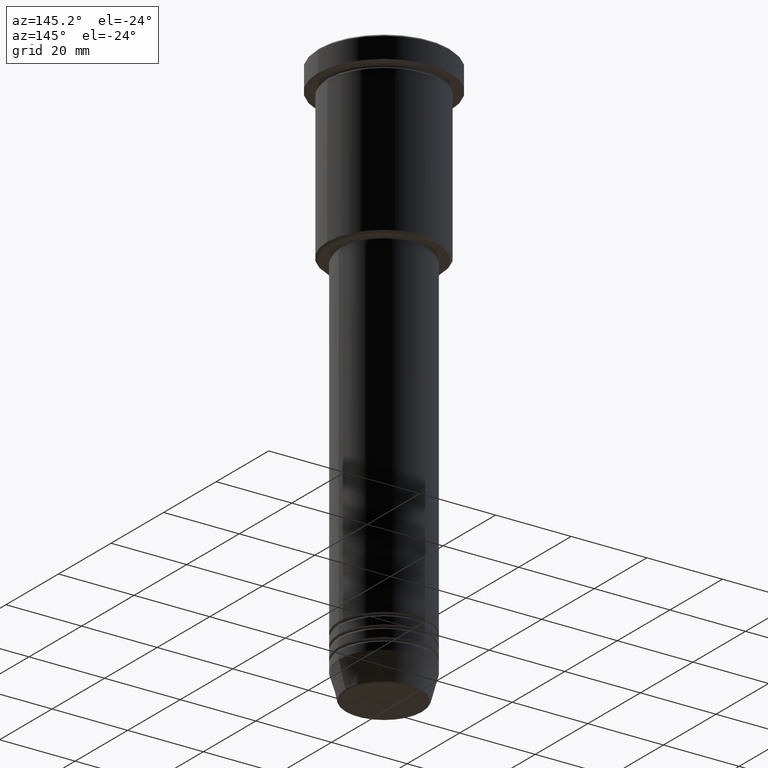
[diagram: clean part render]
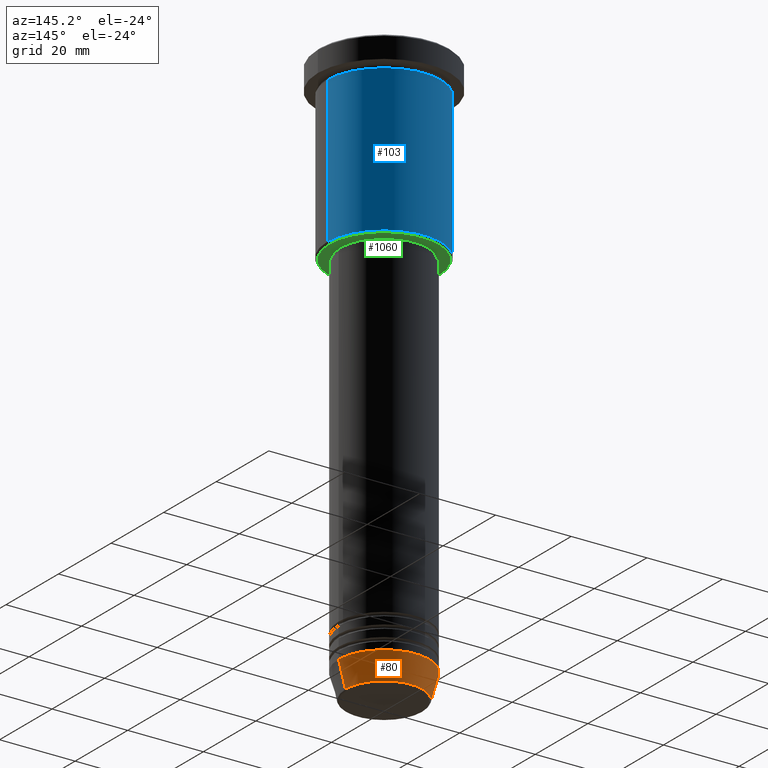
[diagram: same view with three faces highlighted in distinct colors, each labeled with its STEP entity id]
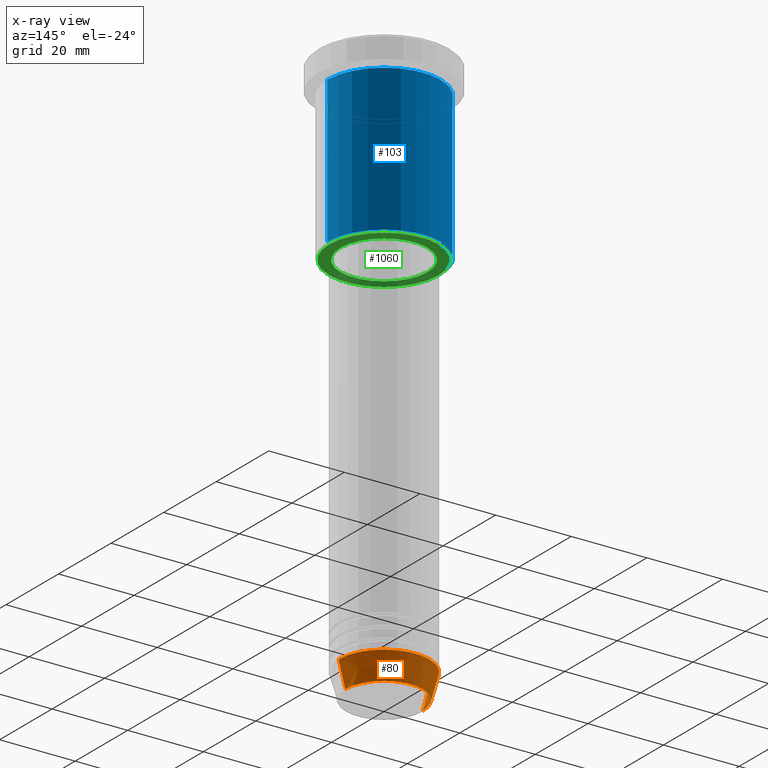
[diagram: x-ray of the same camera — body ghosted, the three highlighted faces saturated]
A machine part, auxiliary view with three faces highlighted in distinct colors.
The next image is the same camera in x-ray (body ghosted, the three faces saturated) — at least one of them is partly hidden behind the body in this view.
Their STEP definitions:

[orange] entity #80 — the highlighted conical surface has half-angle 15 deg.
#41 = CONICAL_SURFACE ( 'NONE', #587, 12.00000000000000000, 0.2617993877991500740 ) ;
#42 = VERTEX_POINT ( 'NONE', #885 ) ;
#52 = EDGE_CURVE ( 'NONE', #42, #327, #1057, .T. ) ;
#53 = DIRECTION ( 'NONE',  ( 0.2588190451025213501, 0.000000000000000000, 0.9659258262890680902 ) ) ;
#80 = ADVANCED_FACE ( 'NONE', ( #786 ), #41, .T. ) ;
#166 = VECTOR ( 'NONE', #254, 1000.000000000000000 ) ;
#179 = DIRECTION ( 'NONE',  ( 1.000000000000000000, 0.000000000000000000, 0.000000000000000000 ) ) ;
#225 = DIRECTION ( 'NONE',  ( -0.000000000000000000, -0.000000000000000000, 1.000000000000000000 ) ) ;
#251 = CARTESIAN_POINT ( 'NONE',  ( 0.000000000000000000, 0.000000000000000000, -144.0000000000000000 ) ) ;
#254 = DIRECTION ( 'NONE',  ( -0.2588190451025213501, 3.169619151431772337E-17, 0.9659258262890680902 ) ) ;
#323 = CARTESIAN_POINT ( 'NONE',  ( 12.00000000000000000, 0.000000000000000000, -144.0000000000000000 ) ) ;
#327 = VERTEX_POINT ( 'NONE', #474 ) ;
#418 = CARTESIAN_POINT ( 'NONE',  ( -12.00000000000000000, 1.469576158976823947E-15, -144.0000000000000000 ) ) ;
#449 = CARTESIAN_POINT ( 'NONE',  ( 0.000000000000000000, 0.000000000000000000, -144.0000000000000000 ) ) ;
#459 = AXIS2_PLACEMENT_3D ( 'NONE', #251, #614, #179 ) ;
#474 = CARTESIAN_POINT ( 'NONE',  ( -12.00000000000000000, 1.469576158976823947E-15, -144.0000000000000000 ) ) ;
#512 = DIRECTION ( 'NONE',  ( -0.000000000000000000, -0.000000000000000000, 1.000000000000000000 ) ) ;
#524 = VERTEX_POINT ( 'NONE', #877 ) ;
#534 = AXIS2_PLACEMENT_3D ( 'NONE', #670, #225, #581 ) ;
#574 = EDGE_CURVE ( 'NONE', #524, #42, #1076, .T. ) ;
#581 = DIRECTION ( 'NONE',  ( 1.000000000000000000, 0.000000000000000000, 0.000000000000000000 ) ) ;
#587 = AXIS2_PLACEMENT_3D ( 'NONE', #449, #512, #623 ) ;
#614 = DIRECTION ( 'NONE',  ( -0.000000000000000000, -0.000000000000000000, 1.000000000000000000 ) ) ;
#615 = ORIENTED_EDGE ( 'NONE', *, *, #1092, .F. ) ;
#623 = DIRECTION ( 'NONE',  ( 1.000000000000000000, 0.000000000000000000, 0.000000000000000000 ) ) ;
#648 = EDGE_LOOP ( 'NONE', ( #1126, #921, #615, #1127 ) ) ;
#670 = CARTESIAN_POINT ( 'NONE',  ( 0.000000000000000000, 0.000000000000000000, -150.6294095225512422 ) ) ;
#686 = VERTEX_POINT ( 'NONE', #323 ) ;
#786 = FACE_OUTER_BOUND ( 'NONE', #648, .T. ) ;
#867 = LINE ( 'NONE', #873, #1098 ) ;
#873 = CARTESIAN_POINT ( 'NONE',  ( 12.00000000000000000, 0.000000000000000000, -144.0000000000000000 ) ) ;
#877 = CARTESIAN_POINT ( 'NONE',  ( 10.22365507213719660, 0.000000000000000000, -150.6294095225512422 ) ) ;
#885 = CARTESIAN_POINT ( 'NONE',  ( -10.22365507213719837, 1.360806402472383336E-15, -150.6294095225512422 ) ) ;
#921 = ORIENTED_EDGE ( 'NONE', *, *, #52, .T. ) ;
#966 = EDGE_CURVE ( 'NONE', #524, #686, #867, .T. ) ;
#1025 = CIRCLE ( 'NONE', #459, 12.00000000000000000 ) ;
#1057 = LINE ( 'NONE', #418, #166 ) ;
#1076 = CIRCLE ( 'NONE', #534, 10.22365507213719660 ) ;
#1092 = EDGE_CURVE ( 'NONE', #686, #327, #1025, .T. ) ;
#1098 = VECTOR ( 'NONE', #53, 1000.000000000000000 ) ;
#1126 = ORIENTED_EDGE ( 'NONE', *, *, #574, .T. ) ;
#1127 = ORIENTED_EDGE ( 'NONE', *, *, #966, .F. ) ;

[blue] entity #103 — the highlighted cylindrical surface (partial cylindrical patch) has radius 15 mm, axis along (-0, -0, 1).
#71 = EDGE_CURVE ( 'NONE', #947, #834, #216, .T. ) ;
#84 = DIRECTION ( 'NONE',  ( 1.000000000000000000, 0.000000000000000000, 0.000000000000000000 ) ) ;
#91 = VECTOR ( 'NONE', #984, 1000.000000000000000 ) ;
#103 = ADVANCED_FACE ( 'NONE', ( #1155 ), #1070, .T. ) ;
#129 = CARTESIAN_POINT ( 'NONE',  ( 15.00000000000000000, 0.000000000000000000, -6.999999999999995559 ) ) ;
#157 = DIRECTION ( 'NONE',  ( -0.000000000000000000, -0.000000000000000000, 1.000000000000000000 ) ) ;
#160 = EDGE_LOOP ( 'NONE', ( #361, #671, #994, #785 ) ) ;
#174 = DIRECTION ( 'NONE',  ( -0.000000000000000000, -0.000000000000000000, 1.000000000000000000 ) ) ;
#190 = CARTESIAN_POINT ( 'NONE',  ( 0.000000000000000000, 0.000000000000000000, -45.49999999999998579 ) ) ;
#216 = CIRCLE ( 'NONE', #1019, 15.00000000000000000 ) ;
#252 = LINE ( 'NONE', #792, #858 ) ;
#276 = AXIS2_PLACEMENT_3D ( 'NONE', #190, #1033, #1117 ) ;
#322 = DIRECTION ( 'NONE',  ( -0.000000000000000000, -0.000000000000000000, 1.000000000000000000 ) ) ;
#326 = CARTESIAN_POINT ( 'NONE',  ( -15.00000000000000000, 1.836970198721029589E-15, -6.999999999999995559 ) ) ;
#361 = ORIENTED_EDGE ( 'NONE', *, *, #416, .T. ) ;
#416 = EDGE_CURVE ( 'NONE', #936, #1018, #780, .T. ) ;
#442 = AXIS2_PLACEMENT_3D ( 'NONE', #899, #174, #84 ) ;
#526 = CARTESIAN_POINT ( 'NONE',  ( 0.000000000000000000, 0.000000000000000000, -6.999999999999995559 ) ) ;
#671 = ORIENTED_EDGE ( 'NONE', *, *, #814, .T. ) ;
#700 = LINE ( 'NONE', #1066, #91 ) ;
#780 = CIRCLE ( 'NONE', #276, 15.00000000000000000 ) ;
#785 = ORIENTED_EDGE ( 'NONE', *, *, #967, .F. ) ;
#792 = CARTESIAN_POINT ( 'NONE',  ( -15.00000000000000000, 1.836970198721029589E-15, 0.000000000000000000 ) ) ;
#814 = EDGE_CURVE ( 'NONE', #1018, #834, #252, .T. ) ;
#834 = VERTEX_POINT ( 'NONE', #326 ) ;
#858 = VECTOR ( 'NONE', #322, 1000.000000000000000 ) ;
#899 = CARTESIAN_POINT ( 'NONE',  ( 0.000000000000000000, 0.000000000000000000, 0.000000000000000000 ) ) ;
#936 = VERTEX_POINT ( 'NONE', #1012 ) ;
#947 = VERTEX_POINT ( 'NONE', #129 ) ;
#967 = EDGE_CURVE ( 'NONE', #936, #947, #700, .T. ) ;
#984 = DIRECTION ( 'NONE',  ( -0.000000000000000000, -0.000000000000000000, 1.000000000000000000 ) ) ;
#994 = ORIENTED_EDGE ( 'NONE', *, *, #71, .F. ) ;
#996 = CARTESIAN_POINT ( 'NONE',  ( -15.00000000000000000, 1.836970198721029589E-15, -45.49999999999998579 ) ) ;
#1012 = CARTESIAN_POINT ( 'NONE',  ( 15.00000000000000000, 0.000000000000000000, -45.49999999999998579 ) ) ;
#1018 = VERTEX_POINT ( 'NONE', #996 ) ;
#1019 = AXIS2_PLACEMENT_3D ( 'NONE', #526, #157, #1167 ) ;
#1033 = DIRECTION ( 'NONE',  ( -0.000000000000000000, -0.000000000000000000, 1.000000000000000000 ) ) ;
#1066 = CARTESIAN_POINT ( 'NONE',  ( 15.00000000000000000, 0.000000000000000000, 0.000000000000000000 ) ) ;
#1070 = CYLINDRICAL_SURFACE ( 'NONE', #442, 15.00000000000000000 ) ;
#1117 = DIRECTION ( 'NONE',  ( -1.000000000000000000, 0.000000000000000000, 0.000000000000000000 ) ) ;
#1155 = FACE_OUTER_BOUND ( 'NONE', #160, .T. ) ;
#1167 = DIRECTION ( 'NONE',  ( 1.000000000000000000, 0.000000000000000000, 0.000000000000000000 ) ) ;

[green] entity #1060 — the highlighted planar face has unit normal (0, 0, -1).
#57 = VERTEX_POINT ( 'NONE', #704 ) ;
#77 = DIRECTION ( 'NONE',  ( -1.000000000000000000, 0.000000000000000000, 0.000000000000000000 ) ) ;
#89 = EDGE_CURVE ( 'NONE', #543, #57, #325, .T. ) ;
#93 = EDGE_LOOP ( 'NONE', ( #118, #220 ) ) ;
#118 = ORIENTED_EDGE ( 'NONE', *, *, #89, .T. ) ;
#145 = VERTEX_POINT ( 'NONE', #354 ) ;
#147 = EDGE_CURVE ( 'NONE', #1139, #145, #764, .T. ) ;
#169 = AXIS2_PLACEMENT_3D ( 'NONE', #324, #606, #1082 ) ;
#220 = ORIENTED_EDGE ( 'NONE', *, *, #1140, .T. ) ;
#228 = EDGE_LOOP ( 'NONE', ( #937, #845 ) ) ;
#263 = CARTESIAN_POINT ( 'NONE',  ( 0.000000000000000000, 0.000000000000000000, -45.99999999999998579 ) ) ;
#266 = CARTESIAN_POINT ( 'NONE',  ( 11.50000000000000000, 0.000000000000000000, -45.99999999999998579 ) ) ;
#299 = EDGE_CURVE ( 'NONE', #145, #1139, #1093, .T. ) ;
#324 = CARTESIAN_POINT ( 'NONE',  ( 0.000000000000000000, 0.000000000000000000, -45.99999999999998579 ) ) ;
#325 = CIRCLE ( 'NONE', #628, 14.50000000000001066 ) ;
#332 = CARTESIAN_POINT ( 'NONE',  ( 0.000000000000000000, 15.00000000000000000, -45.99999999999998579 ) ) ;
#352 = DIRECTION ( 'NONE',  ( -1.000000000000000000, 0.000000000000000000, -0.000000000000000000 ) ) ;
#354 = CARTESIAN_POINT ( 'NONE',  ( -11.50000000000000000, 1.408343819019456176E-15, -45.99999999999998579 ) ) ;
#396 = AXIS2_PLACEMENT_3D ( 'NONE', #976, #680, #1073 ) ;
#543 = VERTEX_POINT ( 'NONE', #886 ) ;
#606 = DIRECTION ( 'NONE',  ( 0.000000000000000000, 0.000000000000000000, -1.000000000000000000 ) ) ;
#628 = AXIS2_PLACEMENT_3D ( 'NONE', #980, #894, #77 ) ;
#631 = CIRCLE ( 'NONE', #169, 14.50000000000001066 ) ;
#680 = DIRECTION ( 'NONE',  ( -0.000000000000000000, -0.000000000000000000, 1.000000000000000000 ) ) ;
#704 = CARTESIAN_POINT ( 'NONE',  ( -14.50000000000001066, 1.806354028742346591E-15, -45.99999999999998579 ) ) ;
#720 = DIRECTION ( 'NONE',  ( -0.000000000000000000, -0.000000000000000000, 1.000000000000000000 ) ) ;
#764 = CIRCLE ( 'NONE', #1169, 11.50000000000000000 ) ;
#845 = ORIENTED_EDGE ( 'NONE', *, *, #299, .T. ) ;
#886 = CARTESIAN_POINT ( 'NONE',  ( 14.50000000000001066, 0.000000000000000000, -45.99999999999998579 ) ) ;
#892 = FACE_OUTER_BOUND ( 'NONE', #93, .T. ) ;
#894 = DIRECTION ( 'NONE',  ( 0.000000000000000000, 0.000000000000000000, -1.000000000000000000 ) ) ;
#897 = FACE_BOUND ( 'NONE', #228, .T. ) ;
#937 = ORIENTED_EDGE ( 'NONE', *, *, #147, .T. ) ;
#976 = CARTESIAN_POINT ( 'NONE',  ( 0.000000000000000000, 0.000000000000000000, -45.99999999999998579 ) ) ;
#980 = CARTESIAN_POINT ( 'NONE',  ( 0.000000000000000000, 0.000000000000000000, -45.99999999999998579 ) ) ;
#1060 = ADVANCED_FACE ( 'NONE', ( #892, #897 ), #1152, .T. ) ;
#1073 = DIRECTION ( 'NONE',  ( 1.000000000000000000, 0.000000000000000000, 0.000000000000000000 ) ) ;
#1082 = DIRECTION ( 'NONE',  ( -1.000000000000000000, 0.000000000000000000, 0.000000000000000000 ) ) ;
#1084 = DIRECTION ( 'NONE',  ( 1.000000000000000000, 0.000000000000000000, 0.000000000000000000 ) ) ;
#1093 = CIRCLE ( 'NONE', #396, 11.50000000000000000 ) ;
#1139 = VERTEX_POINT ( 'NONE', #266 ) ;
#1140 = EDGE_CURVE ( 'NONE', #57, #543, #631, .T. ) ;
#1145 = DIRECTION ( 'NONE',  ( 0.000000000000000000, 0.000000000000000000, -1.000000000000000000 ) ) ;
#1151 = AXIS2_PLACEMENT_3D ( 'NONE', #332, #1145, #352 ) ;
#1152 = PLANE ( 'NONE',  #1151 ) ;
#1169 = AXIS2_PLACEMENT_3D ( 'NONE', #263, #720, #1084 ) ;